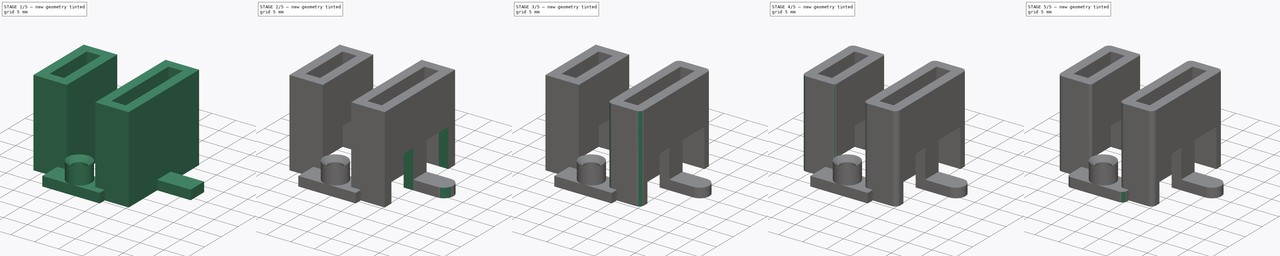
[diagram: build sequence overview — one tinted view per stage of 5, left to right]
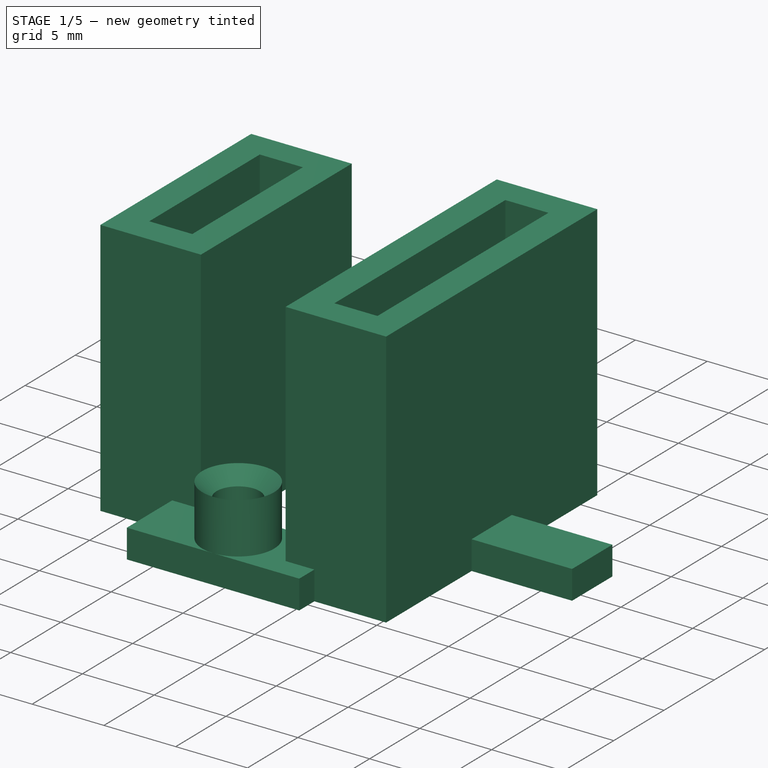
[diagram: stage 1 of 5 — iso view after this stage's code; geometry added in this stage tinted green]
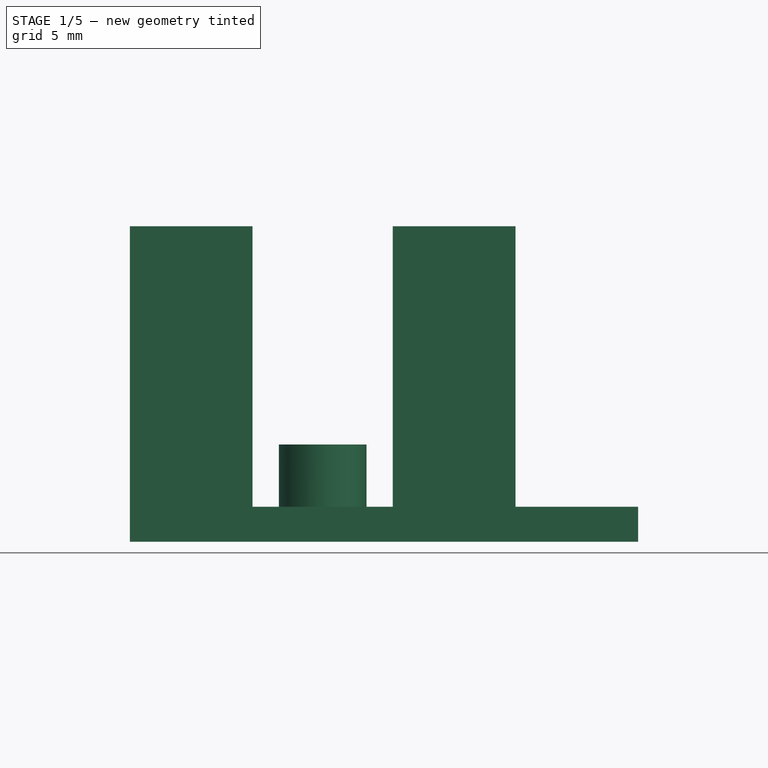
[diagram: stage 1 of 5 — front view after this stage's code; geometry added in this stage tinted green]
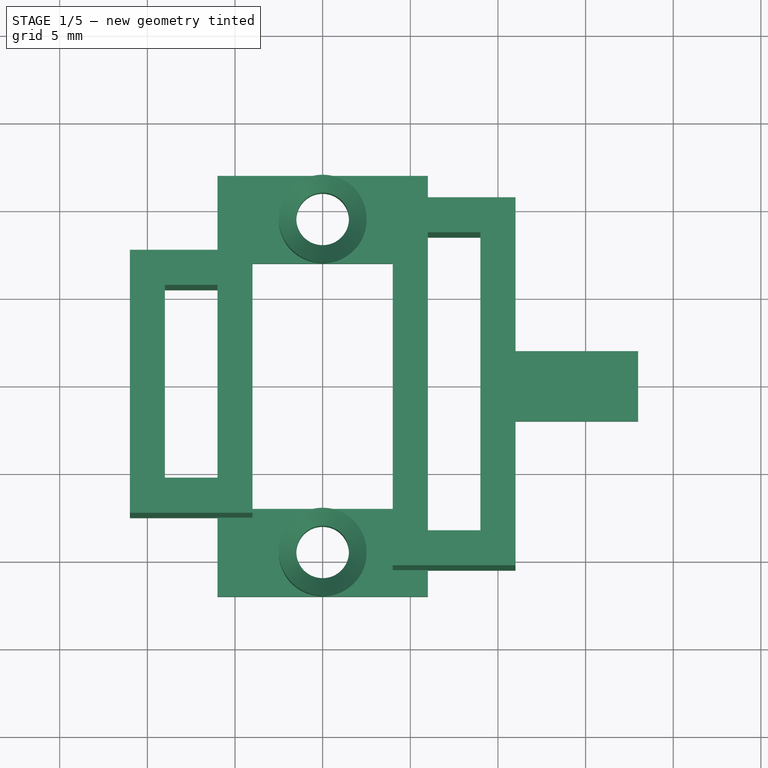
[diagram: stage 1 of 5 — top view after this stage's code; geometry added in this stage tinted green]
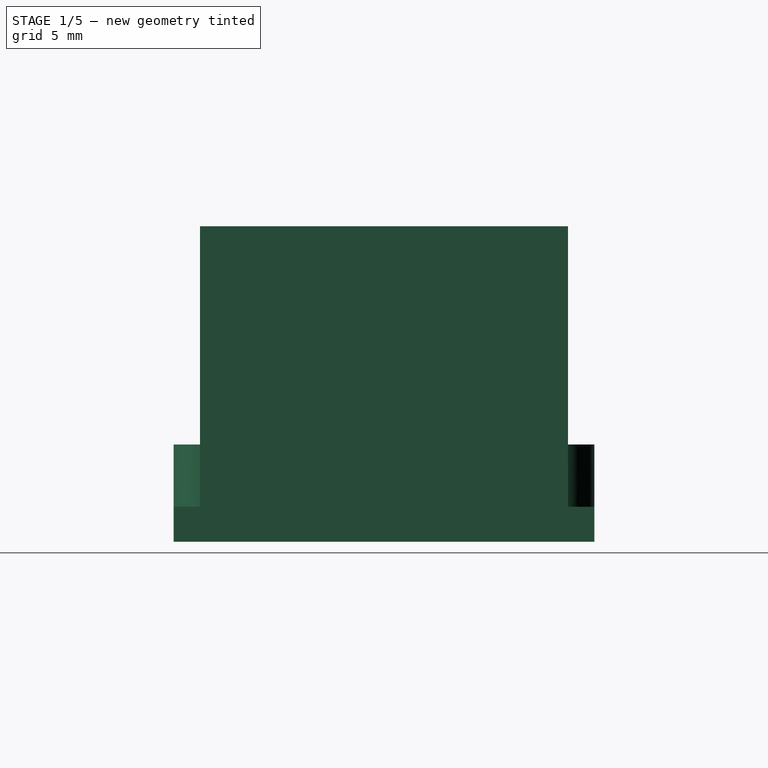
[diagram: stage 1 of 5 — right view after this stage's code; geometry added in this stage tinted green]
FCSTD DOCUMENT  (FreeCAD 0.21R33771 (Git))
Label: Слотове
License: All rights reserved
LicenseURL: https://en.wikipedia.org/wiki/All_rights_reserved
objects: PartDesign::Fillet×14, Sketcher::SketchObject×6, PartDesign::Pad×3, PartDesign::Pocket×2, PartDesign::Hole×1, PartDesign::Body×1
note: 47 computed .brp shape members not serialized (recipe doc carries the construction recipe); baked Part::Feature solids carry a one-line shape summary decoded from their .brp

FEATURE [Sketcher::SketchObject] Sketch001  label="основа - чертеж"
  FullyConstrained = true
  MapMode = 5
  Support = -> [XY_Plane]
  sketch-geometry (28):
    g0: LineSegment StartX=6 StartY=12 StartZ=0 EndX=-6 EndY=12 EndZ=0
    g1: LineSegment StartX=-6 StartY=12 StartZ=0 EndX=-6 EndY=7.5 EndZ=0
    g2: LineSegment StartX=-4 StartY=7 StartZ=0 EndX=4 EndY=7 EndZ=0
    g3: LineSegment StartX=-6 StartY=-12 StartZ=0 EndX=-6 EndY=-7.5 EndZ=0
    g4: LineSegment StartX=-4 StartY=-7 StartZ=0 EndX=4 EndY=-7 EndZ=0
    g5: LineSegment StartX=6 StartY=-10.5 StartZ=0 EndX=6 EndY=-12 EndZ=0
    g6: LineSegment StartX=6 StartY=-12 StartZ=0 EndX=-6 EndY=-12 EndZ=0
    g7: LineSegment StartX=4 StartY=-7 StartZ=0 EndX=4 EndY=7 EndZ=0
    g8: LineSegment StartX=6 StartY=10.5 StartZ=0 EndX=11 EndY=10.5 EndZ=0
    g9: LineSegment StartX=11 StartY=10.5 StartZ=0 EndX=11 EndY=2 EndZ=0
    g10: LineSegment StartX=11 StartY=-10.5 StartZ=0 EndX=6 EndY=-10.5 EndZ=0
    g11: LineSegment StartX=6 StartY=-8.5 StartZ=0 EndX=6 EndY=8.5 EndZ=0
    g12: LineSegment StartX=6 StartY=8.5 StartZ=0 EndX=9 EndY=8.5 EndZ=0
    g13: LineSegment StartX=9 StartY=8.5 StartZ=0 EndX=9 EndY=-8.5 EndZ=0
    g14: LineSegment StartX=9 StartY=-8.5 StartZ=0 EndX=6 EndY=-8.5 EndZ=0
    g15: LineSegment StartX=-6 StartY=-5.5 StartZ=0 EndX=-6 EndY=5.5 EndZ=0
    g16: LineSegment StartX=-6 StartY=5.5 StartZ=0 EndX=-9 EndY=5.5 EndZ=0
    g17: LineSegment StartX=-9 StartY=5.5 StartZ=0 EndX=-9 EndY=-5.5 EndZ=0
    g18: LineSegment StartX=-9 StartY=-5.5 StartZ=0 EndX=-6 EndY=-5.5 EndZ=0
    g19: LineSegment StartX=-4 StartY=-7 StartZ=0 EndX=-4 EndY=7 EndZ=0
    g20: LineSegment StartX=-6 StartY=7.5 StartZ=0 EndX=-11 EndY=7.5 EndZ=0
    g21: LineSegment StartX=-11 StartY=7.5 StartZ=0 EndX=-11 EndY=-7.5 EndZ=0
    g22: LineSegment StartX=-11 StartY=-7.5 StartZ=0 EndX=-6 EndY=-7.5 EndZ=0
    g23: LineSegment StartX=18 StartY=-2 StartZ=0 EndX=18 EndY=2 EndZ=0
    g24: LineSegment StartX=18 StartY=2 StartZ=0 EndX=11 EndY=2 EndZ=0
    g25: LineSegment StartX=11 StartY=-2 StartZ=0 EndX=18 EndY=-2 EndZ=0
    g26: LineSegment StartX=11 StartY=-2 StartZ=0 EndX=11 EndY=-10.5 EndZ=0
    g27: LineSegment StartX=6 StartY=10.5 StartZ=0 EndX=6 EndY=12 EndZ=0
  constraints (82):
    c: Coincident(g27,g0)
    c: Coincident(g0,g1)
    c: Horizontal(g0)
    c: Horizontal(g2)
    c: Vertical(g1)
    c: Coincident(g5,g6)
    c: Coincident(g6,g3)
    c: Horizontal(g4)
    c: Horizontal(g6)
    c: Vertical(g3)
    c: Vertical(g5)
    c: Coincident(g8,g9)
    c: Coincident(g26,g10)
    c: Horizontal(g8)
    c: Horizontal(g10)
    c: Vertical(g7)
    c: Vertical(g9)
    c: Coincident(g11,g12)
    c: Coincident(g12,g13)
    c: Coincident(g13,g14)
    c: Coincident(g14,g11)
    c: Horizontal(g12)
    c: Horizontal(g14)
    c: Vertical(g11)
    c: Vertical(g13)
    c: Coincident(g15,g16)
    c: Coincident(g16,g17)
    c: Coincident(g17,g18)
    c: Coincident(g18,g15)
    c: Horizontal(g16)
    c: Horizontal(g18)
    c: Vertical(g15)
    c: Vertical(g17)
    c: Coincident(g20,g21)
    c: Coincident(g21,g22)
    c: Horizontal(g20)
    c: Horizontal(g22)
    c: Vertical(g19)
    c: Vertical(g21)
    c: Coincident(g23,g24)
    c: Coincident(g25,g23)
    c: Horizontal(g24)
    c: Horizontal(g25)
    c: Vertical(g23)
    c: Coincident(g4,g19)
    c: Coincident(g3,g22)
    c: Coincident(g9,g24)
    c: Coincident(g26,g25)
    c: Coincident(g1,g20)
    c: Coincident(g19,g2)
    c: Coincident(g27,g8)
    c: Coincident(g10,g5)
    c: Coincident(g7,g4)
    c: Coincident(g2,g7)
    c: Vertical(g27)
    c: Vertical(g26)
    c: DistanceX(g12,g12) = 3
    c: DistanceY(g13,g13) = 17
    c: DistanceX(g-1,g11) = 6
    c: DistanceY(g-1,g11) = 8.5
    c: DistanceY(g7,g7) = 14
    c: DistanceX(g2,g2) = 8
    c: DistanceX(g-1,g2) = 4
    c: DistanceY(g-1,g2) = 7
    c: DistanceX(g16,g16) = 3
    c: DistanceY(g15,g15) = 11
    c: DistanceX(g15,g-1) = 6
    c: DistanceY(g-1,g15) = 5.5
    c: DistanceY(g-1,g0) = 12
    c: Symmetric(g0,g3,g-1)
    c: DistanceX(g0,g-1) = 6
    c: DistanceX(g-1,g0) = 6
    c: DistanceY(g12,g8) = 2
    c: DistanceX(g12,g8) = 2
    c: Symmetric(g8,g10,g-1)
    c: DistanceY(g25,g9) = 4
    c: DistanceY(g-1,g23) = 2
    c: DistanceX(g-1,g23) = 18
    c: DistanceX(g-1,g5) = 6
    c: DistanceX(g21,g17) = 2
    c: DistanceY(g21,g-1) = 7.5
    c: DistanceY(g-1,g20) = 7.5
FEATURE [PartDesign::Pad] Pad  label="основа"
  Direction = (0,0,1)
  Length = 2
  Length2 = 10
  Profile = -> Sketch001
  ReferenceAxis = -> Sketch001 [N_Axis]
  Type = 0
FEATURE [Sketcher::SketchObject] Sketch  label="колонки - чертеж"
  FullyConstrained = true
  MapMode = 5
  Placement = pos=(0,0,2) rot=(0,0,1;0rad)
  Support = -> [Pad]
  sketch-geometry (2):
    g0: Circle CenterX=0 CenterY=9.5 CenterZ=0 NormalX=0 NormalY=0 NormalZ=1 AngleXU=0 Radius=2.5
    g1: Circle CenterX=0 CenterY=-9.5 CenterZ=0 NormalX=0 NormalY=0 NormalZ=1 AngleXU=0 Radius=2.5
  constraints (5):
    c: Symmetric(g1,g0,g-1)
    c: DistanceY(g-1,g0) = 9.5
    c: PointOnObject(g0,g-2)
    c: Equal(g1,g0)
    c: Diameter(g1) = 5
FEATURE [PartDesign::Pad] Pad001  label="колонки"
  BaseFeature = -> Pad
  Direction = (0,0,1)
  Length = 4
  Length2 = 10
  Profile = -> Sketch
  ReferenceAxis = -> Sketch [N_Axis]
  Type = 0
FEATURE [Sketcher::SketchObject] Sketch002  label="монтажни отвори - чертеж"
  FullyConstrained = true
  MapMode = 5
  Placement = pos=(0,0,6) rot=(0,0,1;0rad)
  Support = -> [Pad001]
  sketch-geometry (2):
    g0: Circle CenterX=0 CenterY=9.5 CenterZ=0 NormalX=0 NormalY=0 NormalZ=1 AngleXU=0 Radius=1.5
    g1: Circle CenterX=0 CenterY=-9.5 CenterZ=0 NormalX=0 NormalY=0 NormalZ=1 AngleXU=0 Radius=1.5
  constraints (6):
    c: PointOnObject(g0,g-2)
    c: PointOnObject(g1,g-2)
    c: DistanceY(g-1,g0) = 9.5
    c: DistanceY(g1,g-1) = 9.5
    c: Equal(g1,g0)
    c: Diameter(g1) = 3
FEATURE [PartDesign::Hole] Hole
  BaseFeature = -> Pad001
  CustomThreadClearance = 0
  Depth = 25
  DepthType = 0
  Diameter = 3
  DrillForDepth = false
  DrillPoint = 1
  DrillPointAngle = 118
  HoleCutCountersinkAngle = 90
  HoleCutCustomValues = false
  HoleCutDepth = 0
  HoleCutDiameter = 5.9
  HoleCutType = 2
  ModelThread = false
  Profile = -> Sketch002
  Tapered = false
  TaperedAngle = 90
  ThreadClass = 0
  ThreadDepth = 25
  ThreadDepthType = 0
  ThreadDirection = 0
  ThreadFit = 0
  ThreadSize = 0
  ThreadType = 0
  Threaded = false
  UseCustomThreadClearance = false
FEATURE [Sketcher::SketchObject] Sketch003  label="слотове - чертеж"
  FullyConstrained = true
  MapMode = 5
  Placement = pos=(0,0,2) rot=(0,0,1;0rad)
  Support = -> [Hole]
  sketch-geometry (20):
    g0: LineSegment StartX=-6 StartY=-5.5 StartZ=0 EndX=-6 EndY=5.5 EndZ=0
    g1: LineSegment StartX=-6 StartY=5.5 StartZ=0 EndX=-9 EndY=5.5 EndZ=0
    g2: LineSegment StartX=-9 StartY=5.5 StartZ=0 EndX=-9 EndY=-5.5 EndZ=0
    g3: LineSegment StartX=-9 StartY=-5.5 StartZ=0 EndX=-6 EndY=-5.5 EndZ=0
    g4: GeomPoint X=-7.5 Y=0 Z=0
    g5: LineSegment StartX=-4 StartY=-7.5 StartZ=0 EndX=-4 EndY=7.5 EndZ=0
    g6: LineSegment StartX=-4 StartY=7.5 StartZ=0 EndX=-11 EndY=7.5 EndZ=0
    g7: LineSegment StartX=-11 StartY=7.5 StartZ=0 EndX=-11 EndY=-7.5 EndZ=0
    g8: LineSegment StartX=-11 StartY=-7.5 StartZ=0 EndX=-4 EndY=-7.5 EndZ=0
    g9: GeomPoint X=-7.5 Y=0 Z=0
    g10: LineSegment StartX=9 StartY=-8.5 StartZ=0 EndX=9 EndY=8.5 EndZ=0
    g11: LineSegment StartX=9 StartY=8.5 StartZ=0 EndX=6 EndY=8.5 EndZ=0
    g12: LineSegment StartX=6 StartY=8.5 StartZ=0 EndX=6 EndY=-8.5 EndZ=0
    g13: LineSegment StartX=6 StartY=-8.5 StartZ=0 EndX=9 EndY=-8.5 EndZ=0
    g14: GeomPoint X=7.5 Y=0 Z=0
    g15: LineSegment StartX=11 StartY=-10.5 StartZ=0 EndX=11 EndY=10.5 EndZ=0
    g16: LineSegment StartX=11 StartY=10.5 StartZ=0 EndX=4 EndY=10.5 EndZ=0
    g17: LineSegment StartX=4 StartY=10.5 StartZ=0 EndX=4 EndY=-10.5 EndZ=0
    g18: LineSegment StartX=4 StartY=-10.5 StartZ=0 EndX=11 EndY=-10.5 EndZ=0
    g19: GeomPoint X=7.5 Y=0 Z=0
  constraints (50):
    c: Coincident(g0,g1)
    c: Coincident(g1,g2)
    c: Coincident(g2,g3)
    c: Coincident(g3,g0)
    c: Horizontal(g1)
    c: Horizontal(g3)
    c: Vertical(g0)
    c: Vertical(g2)
    c: Symmetric(g1,g0,g4)
    c: PointOnObject(g4,g-1)
    c: Coincident(g5,g6)
    c: Coincident(g6,g7)
    c: Coincident(g7,g8)
    c: Coincident(g8,g5)
    c: Horizontal(g6)
    c: Horizontal(g8)
    c: Vertical(g5)
    c: Vertical(g7)
    c: Symmetric(g6,g5,g9)
    c: Coincident(g9,g4)
    c: Coincident(g10,g11)
    c: Coincident(g11,g12)
    c: Coincident(g12,g13)
    c: Coincident(g13,g10)
    c: Horizontal(g11)
    c: Horizontal(g13)
    c: Vertical(g10)
    c: Vertical(g12)
    c: Symmetric(g11,g10,g14)
    c: PointOnObject(g14,g-1)
    c: Coincident(g15,g16)
    c: Coincident(g16,g17)
    c: Coincident(g17,g18)
    c: Coincident(g18,g15)
    c: Horizontal(g16)
    c: Horizontal(g18)
    c: Vertical(g15)
    c: Vertical(g17)
    c: Symmetric(g16,g15,g19)
    c: Coincident(g19,g14)
    c: DistanceX(g13,g13) = 3
    c: DistanceY(g10,g10) = 17
    c: DistanceX(g-1,g14) = 7.5
    c: DistanceX(g10,g15) = 2
    c: DistanceY(g10,g15) = 2
    c: DistanceY(g0,g0) = 11
    c: DistanceX(g3,g3) = 3
    c: DistanceX(g4,g-1) = 7.5
    c: DistanceX(g7,g2) = 2
    c: DistanceY(g7,g2) = 2
FEATURE [PartDesign::Pad] Pad002  label="слотове"
  BaseFeature = -> Hole
  Direction = (0,0,1)
  Length = 16
  Length2 = 10
  Profile = -> Sketch003
  ReferenceAxis = -> Sketch003 [N_Axis]
  Type = 0
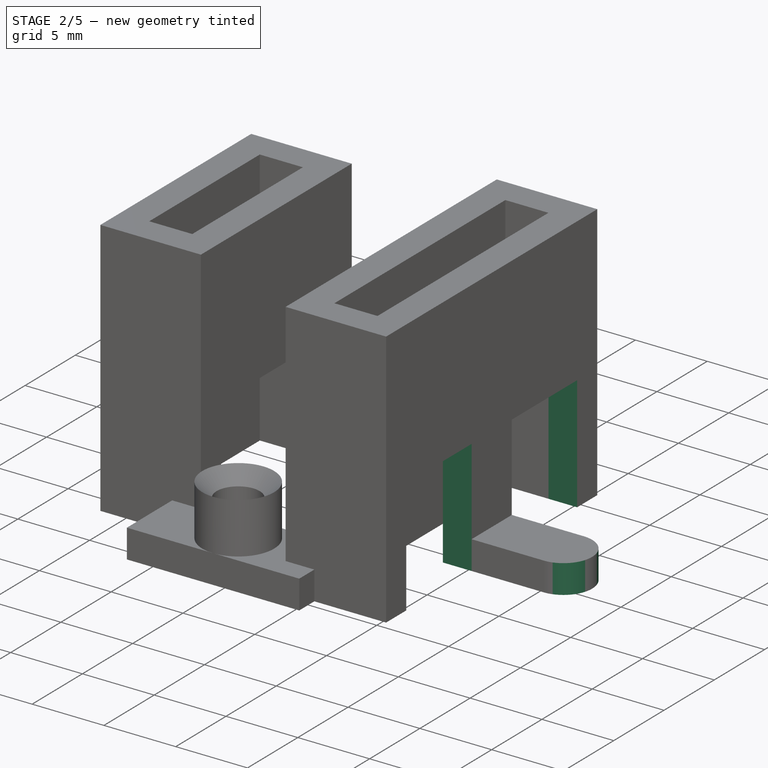
[diagram: stage 2 of 5 — iso view after this stage's code; geometry added in this stage tinted green]
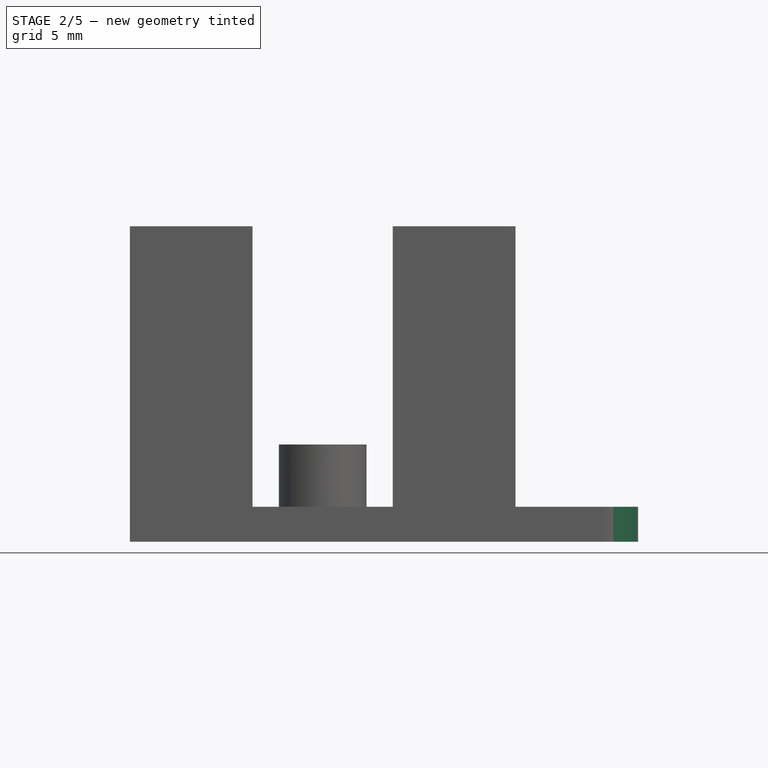
[diagram: stage 2 of 5 — front view after this stage's code; geometry added in this stage tinted green]
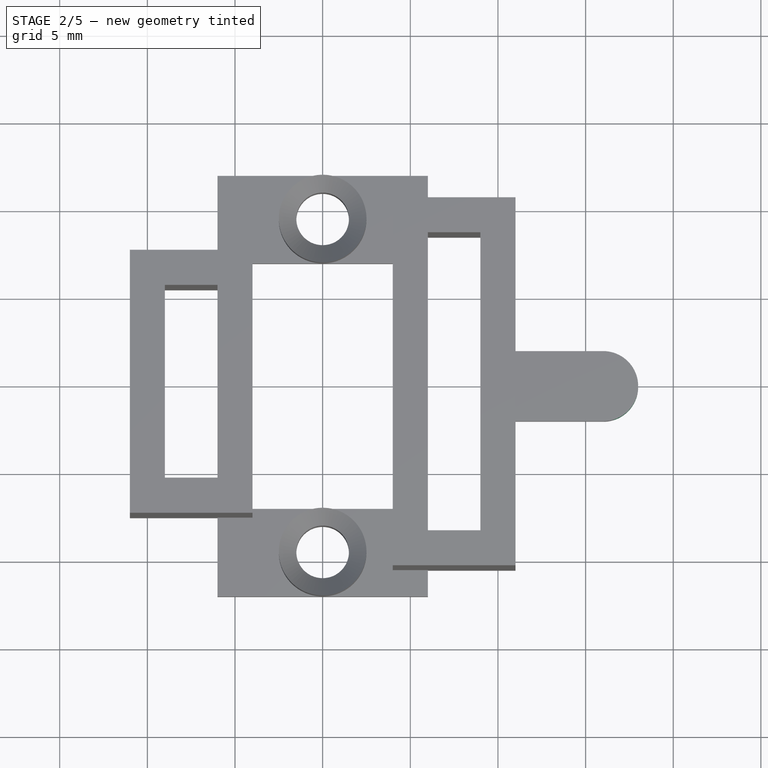
[diagram: stage 2 of 5 — top view after this stage's code; geometry added in this stage tinted green]
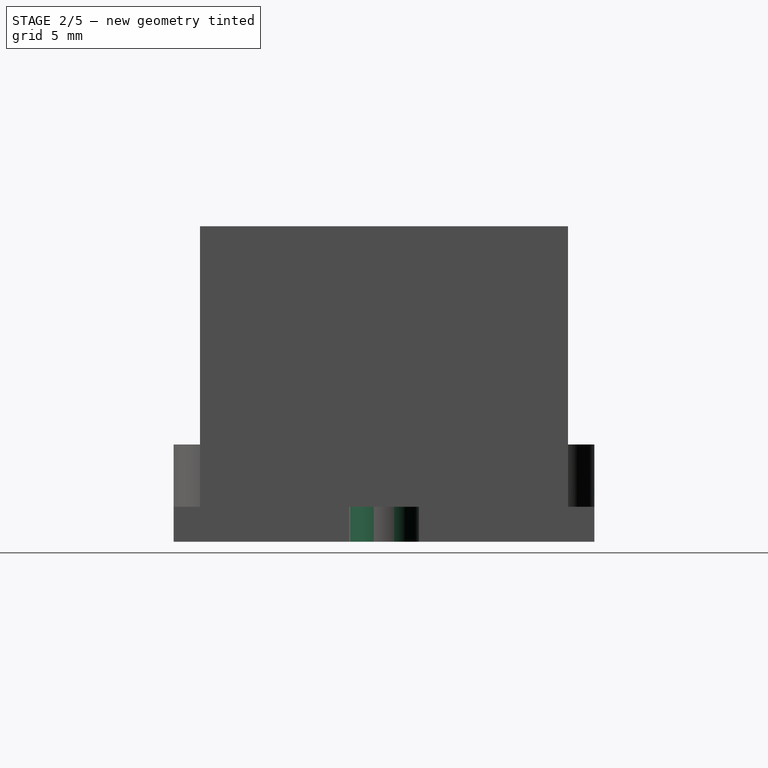
[diagram: stage 2 of 5 — right view after this stage's code; geometry added in this stage tinted green]
FEATURE [Sketcher::SketchObject] Sketch004  label="кабелни  отвори задни - чертеж"
  FullyConstrained = true
  MapMode = 5
  Placement = pos=(11,0,0) rot=(0.57735,0.57735,0.57735;2.0944rad)
  Support = -> [Pad002]
  sketch-geometry (8):
    g0: LineSegment StartX=-2 StartY=0 StartZ=0 EndX=-8.5 EndY=0 EndZ=0
    g1: LineSegment StartX=-8.5 StartY=0 StartZ=0 EndX=-8.5 EndY=8 EndZ=0
    g2: LineSegment StartX=-8.5 StartY=8 StartZ=0 EndX=-2 EndY=8 EndZ=0
    g3: LineSegment StartX=-2 StartY=8 StartZ=0 EndX=-2 EndY=0 EndZ=0
    g4: LineSegment StartX=2 StartY=0 StartZ=0 EndX=8.5 EndY=0 EndZ=0
    g5: LineSegment StartX=8.5 StartY=0 StartZ=0 EndX=8.5 EndY=8 EndZ=0
    g6: LineSegment StartX=8.5 StartY=8 StartZ=0 EndX=2 EndY=8 EndZ=0
    g7: LineSegment StartX=2 StartY=8 StartZ=0 EndX=2 EndY=0 EndZ=0
  constraints (24):
    c: Coincident(g0,g1)
    c: Coincident(g1,g2)
    c: Coincident(g2,g3)
    c: Coincident(g3,g0)
    c: Horizontal(g0)
    c: Horizontal(g2)
    c: Vertical(g1)
    c: Vertical(g3)
    c: PointOnObject(g0,g-1)
    c: Coincident(g4,g5)
    c: Coincident(g5,g6)
    c: Coincident(g6,g7)
    c: Coincident(g7,g4)
    c: Horizontal(g4)
    c: Horizontal(g6)
    c: Vertical(g5)
    c: Vertical(g7)
    c: PointOnObject(g4,g-1)
    c: DistanceX(g2,g2) = 6.5
    c: DistanceX(g2,g-1) = 2
    c: DistanceX(g-1,g6) = 2
    c: DistanceX(g6,g6) = 6.5
    c: DistanceY(g1,g1) = 8
    c: DistanceY(g7,g7) = 8
FEATURE [PartDesign::Pocket] Pocket  label="кабелни  отвори задни"
  BaseFeature = -> Pad002
  Direction = (-1,0,0)
  Length = 2
  Length2 = 5
  Profile = -> Sketch004
  ReferenceAxis = -> Sketch004 [N_Axis]
  Type = 0
FEATURE [Sketcher::SketchObject] Sketch005  label="кабелен  отвор преден - чертеж"
  FullyConstrained = true
  MapMode = 5
  Placement = pos=(-4,0,0) rot=(0.57735,0.57735,0.57735;2.0944rad)
  Support = -> [Pocket]
  sketch-geometry (5):
    g0: LineSegment StartX=-5.5 StartY=8 StartZ=0 EndX=-5.5 EndY=0 EndZ=0
    g1: LineSegment StartX=-5.5 StartY=0 StartZ=0 EndX=5.5 EndY=0 EndZ=0
    g2: LineSegment StartX=5.5 StartY=0 StartZ=0 EndX=5.5 EndY=8 EndZ=0
    g3: LineSegment StartX=5.5 StartY=8 StartZ=0 EndX=-5.5 EndY=8 EndZ=0
    g4: GeomPoint X=-2e-16 Y=4 Z=0
  constraints (13):
    c: Coincident(g0,g1)
    c: Coincident(g1,g2)
    c: Coincident(g2,g3)
    c: Coincident(g3,g0)
    c: Horizontal(g1)
    c: Horizontal(g3)
    c: Vertical(g0)
    c: Vertical(g2)
    c: Symmetric(g1,g0,g4)
    c: PointOnObject(g4,g-2)
    c: DistanceX(g3,g3) = 11
    c: DistanceY(g2,g2) = 8
    c: DistanceY(g-1,g2) = 8
FEATURE [PartDesign::Pocket] Pocket001  label="кабелен  отвор преден"
  BaseFeature = -> Pocket
  Direction = (-1,0,0)
  Length = 2
  Length2 = 5
  Profile = -> Sketch005
  ReferenceAxis = -> Sketch005 [N_Axis]
  Type = 0
FEATURE [PartDesign::Fillet] Fillet
  Base = -> Pocket001 [Edge183]
  BaseFeature = -> Pocket001
  Radius = 2
  SupportTransform = false
  UseAllEdges = false
FEATURE [PartDesign::Fillet] Fillet001
  Base = -> Fillet [Edge23]
  BaseFeature = -> Fillet
  Radius = 1.99
  SupportTransform = false
  UseAllEdges = false
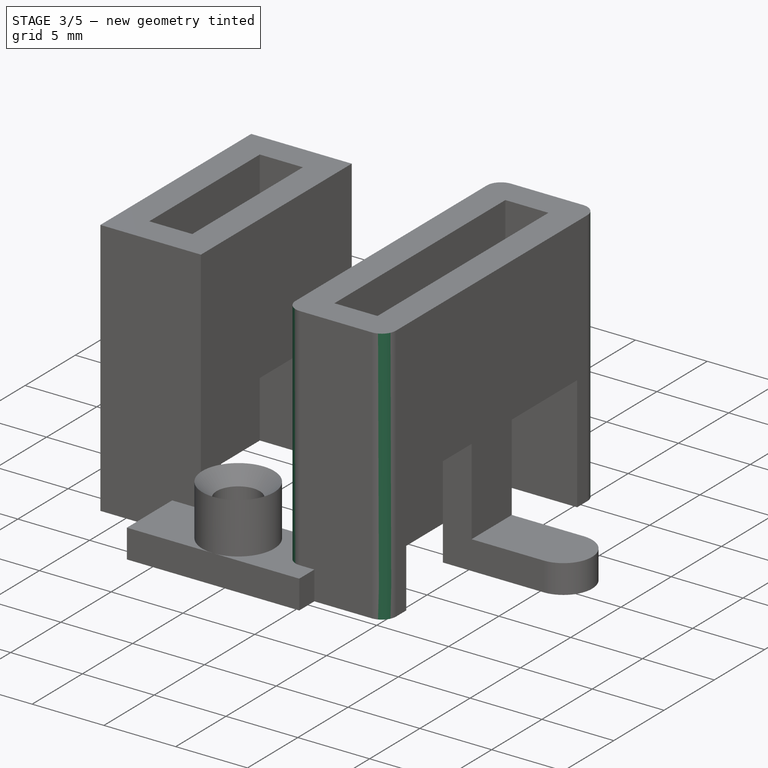
[diagram: stage 3 of 5 — iso view after this stage's code; geometry added in this stage tinted green]
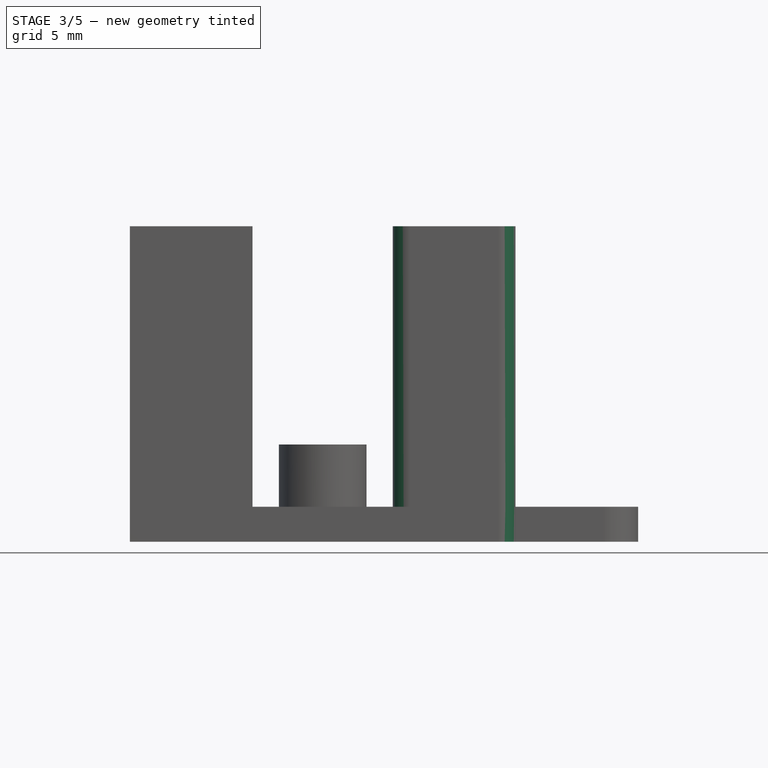
[diagram: stage 3 of 5 — front view after this stage's code; geometry added in this stage tinted green]
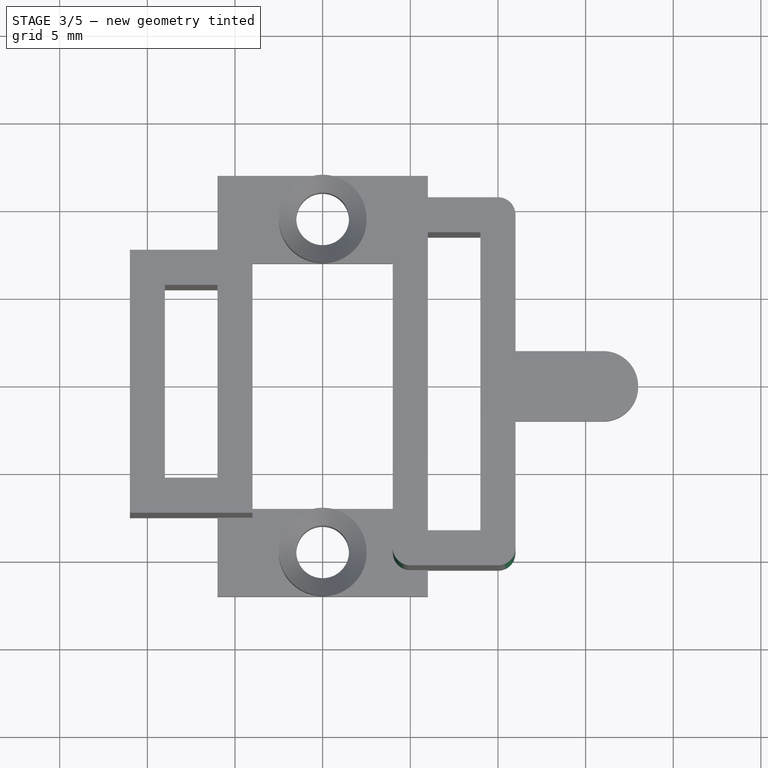
[diagram: stage 3 of 5 — top view after this stage's code; geometry added in this stage tinted green]
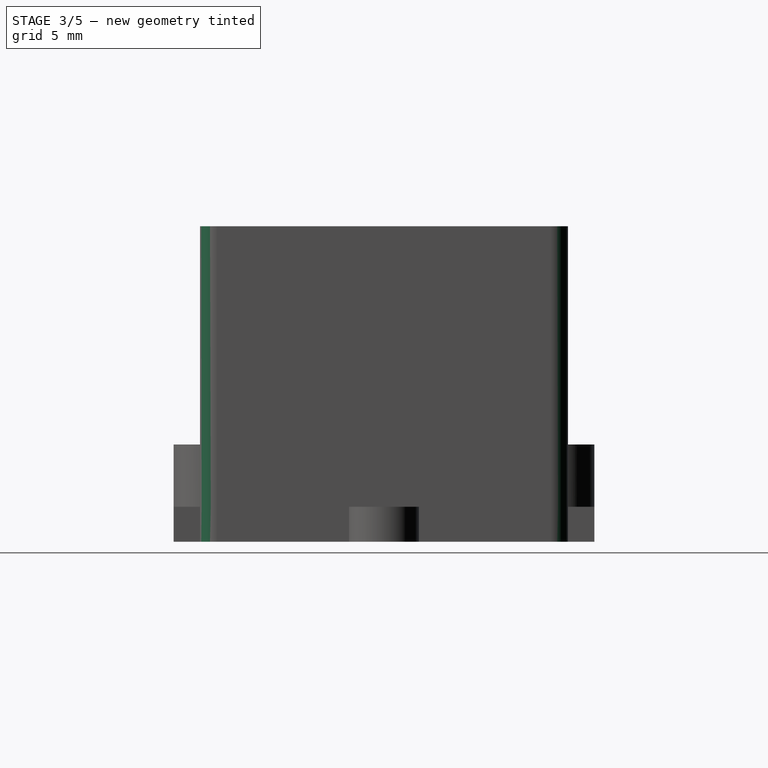
[diagram: stage 3 of 5 — right view after this stage's code; geometry added in this stage tinted green]
FEATURE [PartDesign::Fillet] Fillet002
  Base = -> Fillet001 [Edge26]
  BaseFeature = -> Fillet001
  Radius = 1
  SupportTransform = false
  UseAllEdges = false
FEATURE [PartDesign::Fillet] Fillet003
  Base = -> Fillet002 [Edge6]
  BaseFeature = -> Fillet002
  Radius = 1
  SupportTransform = false
  UseAllEdges = false
FEATURE [PartDesign::Fillet] Fillet004
  Base = -> Fillet003 [Edge59]
  BaseFeature = -> Fillet003
  Radius = 1
  SupportTransform = false
  UseAllEdges = false
FEATURE [PartDesign::Fillet] Fillet005
  Base = -> Fillet004 [Edge23]
  BaseFeature = -> Fillet004
  Radius = 1
  SupportTransform = false
  UseAllEdges = false
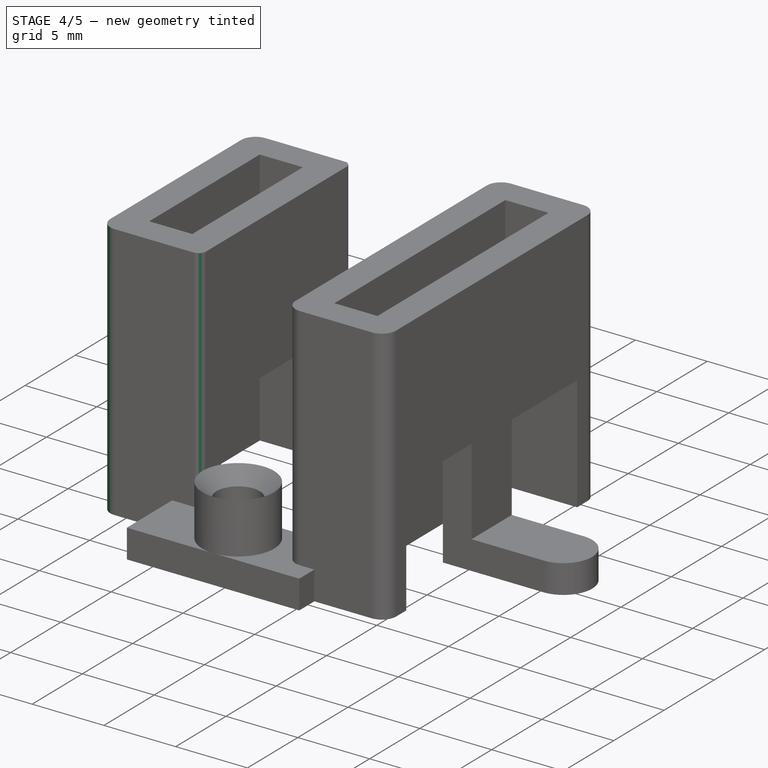
[diagram: stage 4 of 5 — iso view after this stage's code; geometry added in this stage tinted green]
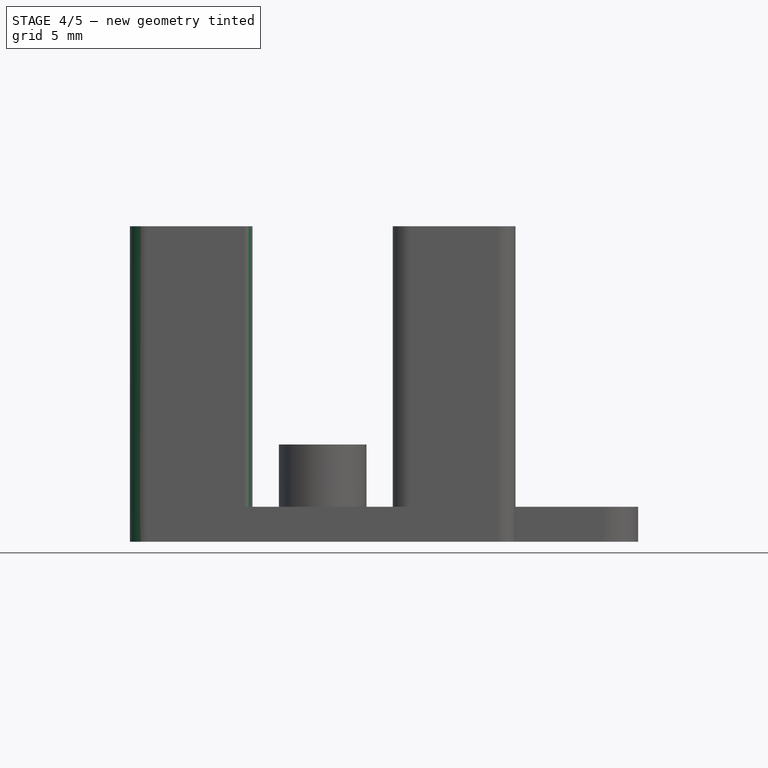
[diagram: stage 4 of 5 — front view after this stage's code; geometry added in this stage tinted green]
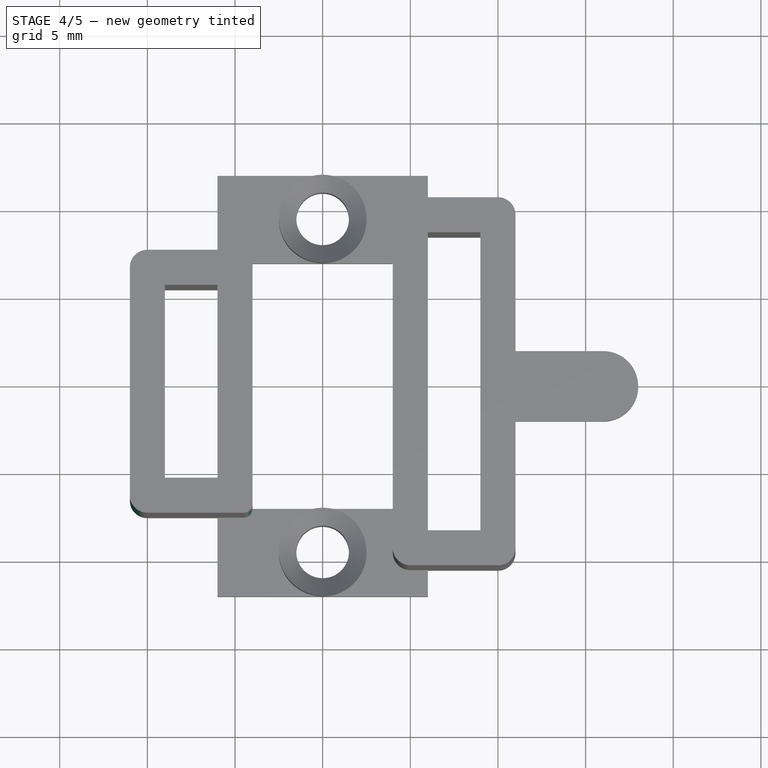
[diagram: stage 4 of 5 — top view after this stage's code; geometry added in this stage tinted green]
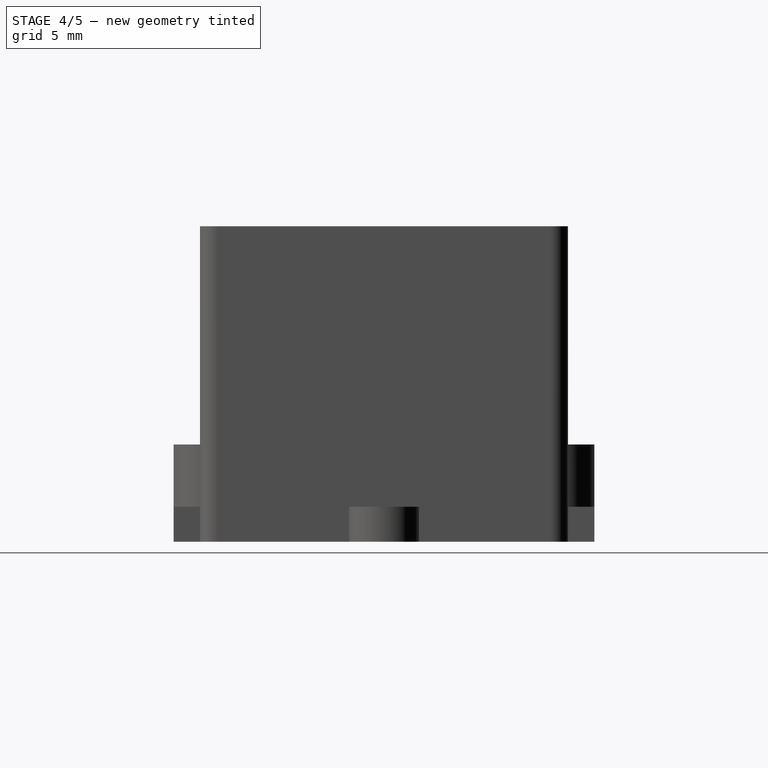
[diagram: stage 4 of 5 — right view after this stage's code; geometry added in this stage tinted green]
FEATURE [PartDesign::Fillet] Fillet006
  Base = -> Fillet005 [Edge192]
  BaseFeature = -> Fillet005
  Radius = 1
  SupportTransform = false
  UseAllEdges = false
FEATURE [PartDesign::Fillet] Fillet007
  Base = -> Fillet006 [Edge113]
  BaseFeature = -> Fillet006
  Radius = 1
  SupportTransform = false
  UseAllEdges = false
FEATURE [PartDesign::Fillet] Fillet008
  Base = -> Fillet007 [Edge127]
  BaseFeature = -> Fillet007
  Radius = 0.5
  SupportTransform = false
  UseAllEdges = false
FEATURE [PartDesign::Fillet] Fillet009
  Base = -> Fillet008 [Edge40]
  BaseFeature = -> Fillet008
  Radius = 0.5
  SupportTransform = false
  UseAllEdges = false
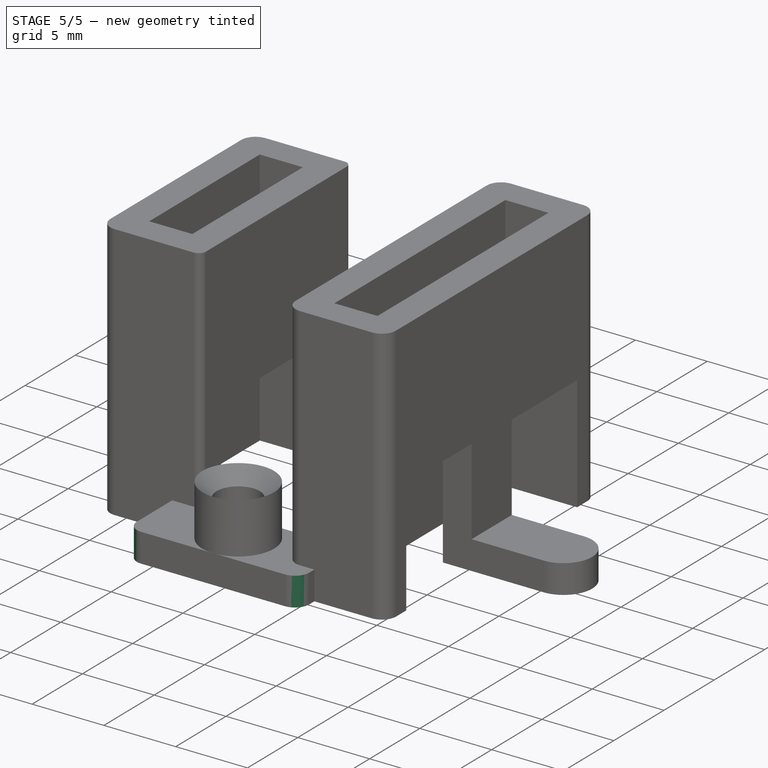
[diagram: stage 5 of 5 — iso view after this stage's code; geometry added in this stage tinted green]
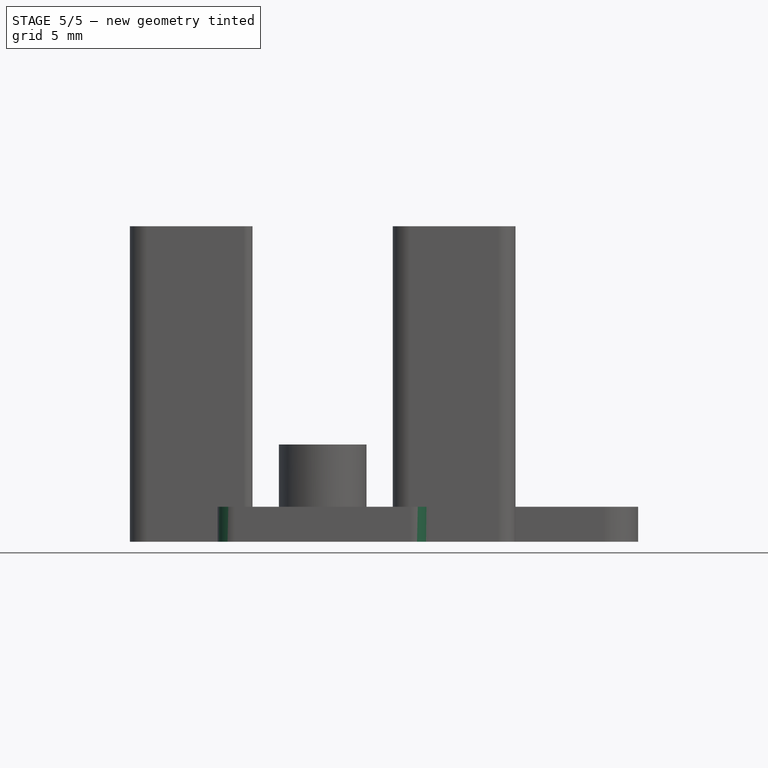
[diagram: stage 5 of 5 — front view after this stage's code; geometry added in this stage tinted green]
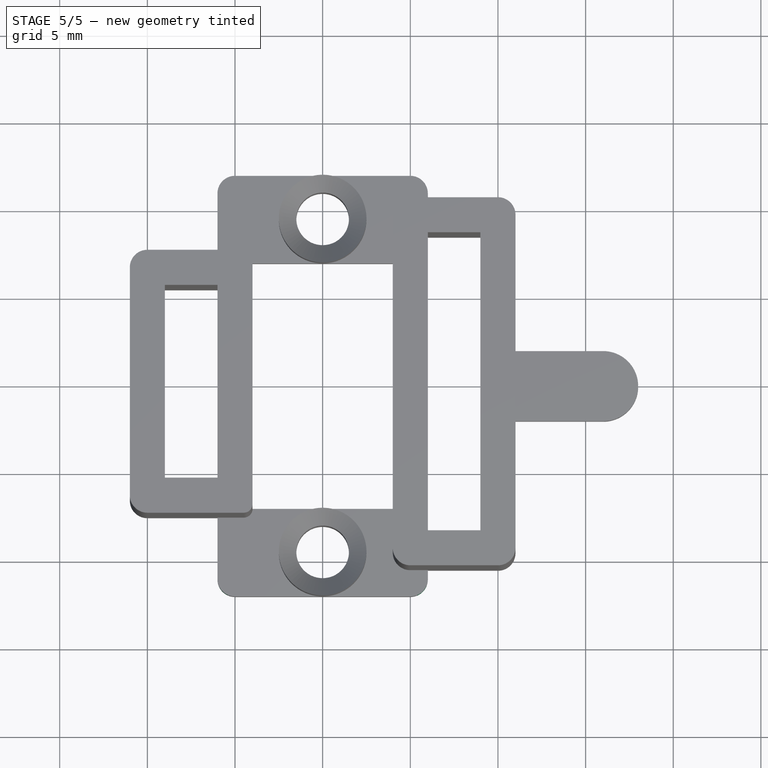
[diagram: stage 5 of 5 — top view after this stage's code; geometry added in this stage tinted green]
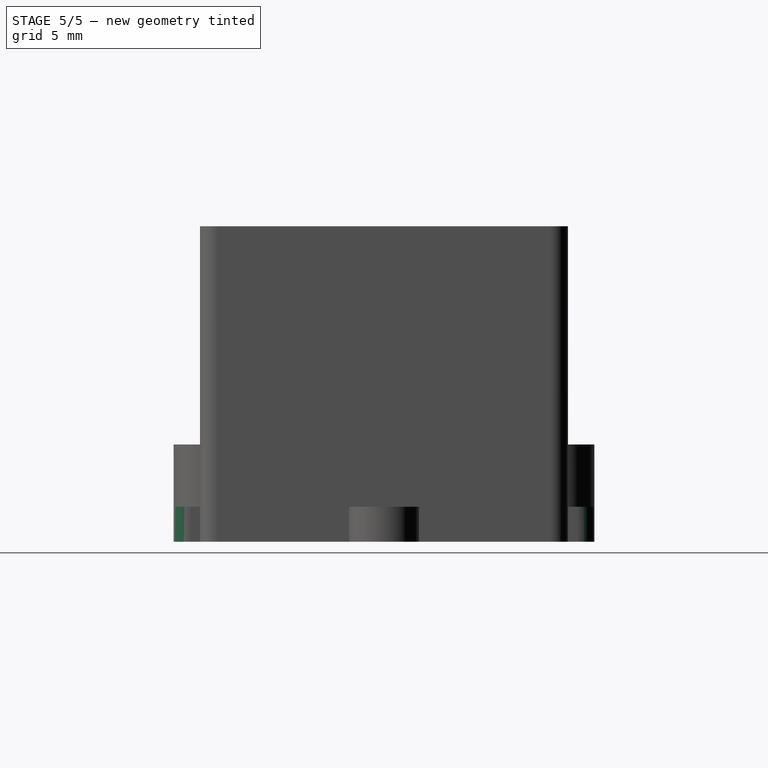
[diagram: stage 5 of 5 — right view after this stage's code; geometry added in this stage tinted green]
FEATURE [PartDesign::Fillet] Fillet010
  Base = -> Fillet009 [Edge107]
  BaseFeature = -> Fillet009
  Radius = 1
  SupportTransform = false
  UseAllEdges = false
FEATURE [PartDesign::Fillet] Fillet011
  Base = -> Fillet010 [Edge18]
  BaseFeature = -> Fillet010
  Radius = 1
  SupportTransform = false
  UseAllEdges = false
FEATURE [PartDesign::Fillet] Fillet012
  Base = -> Fillet011 [Edge83]
  BaseFeature = -> Fillet011
  Radius = 1
  SupportTransform = false
  UseAllEdges = false
FEATURE [PartDesign::Fillet] Fillet013
  Base = -> Fillet012 [Edge45]
  BaseFeature = -> Fillet012
  Radius = 1
  SupportTransform = false
  UseAllEdges = false
FEATURE [PartDesign::Body] Body
  Group = -> [Sketch,Sketch001,Pad,Pad001,Sketch002,Hole,Sketch003,Pad002,Sketch004,Pocket,Sketch005,Pocket001,Fillet,Fillet001,Fillet002,Fillet003,Fillet004,Fillet005,Fillet006,Fillet007,Fillet008,Fillet009,Fillet010,Fillet011,Fillet012,Fillet013]
  Origin = -> Origin
  Tip = -> Fillet013
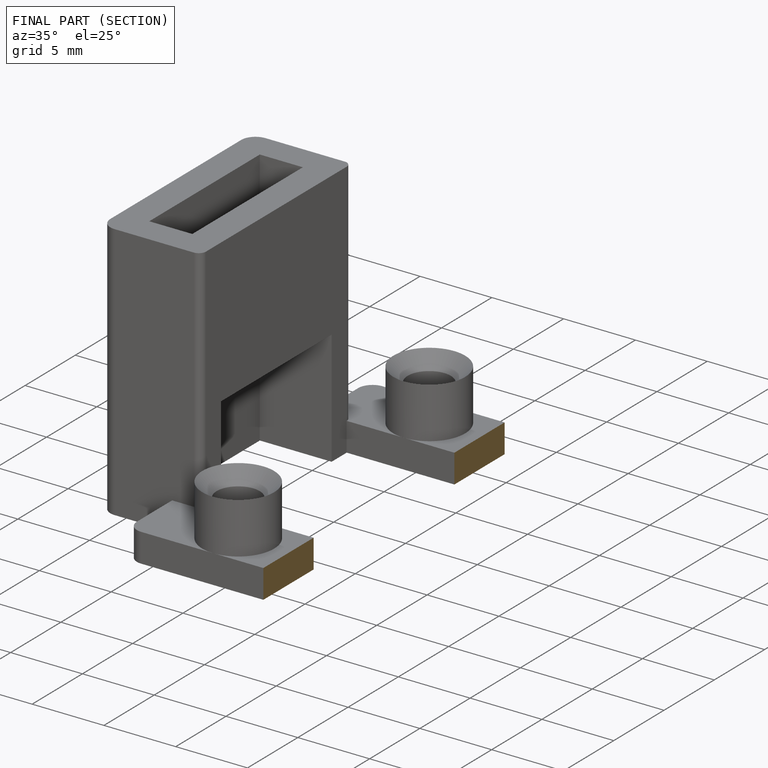
[diagram: finished part — half-section view (interior)]
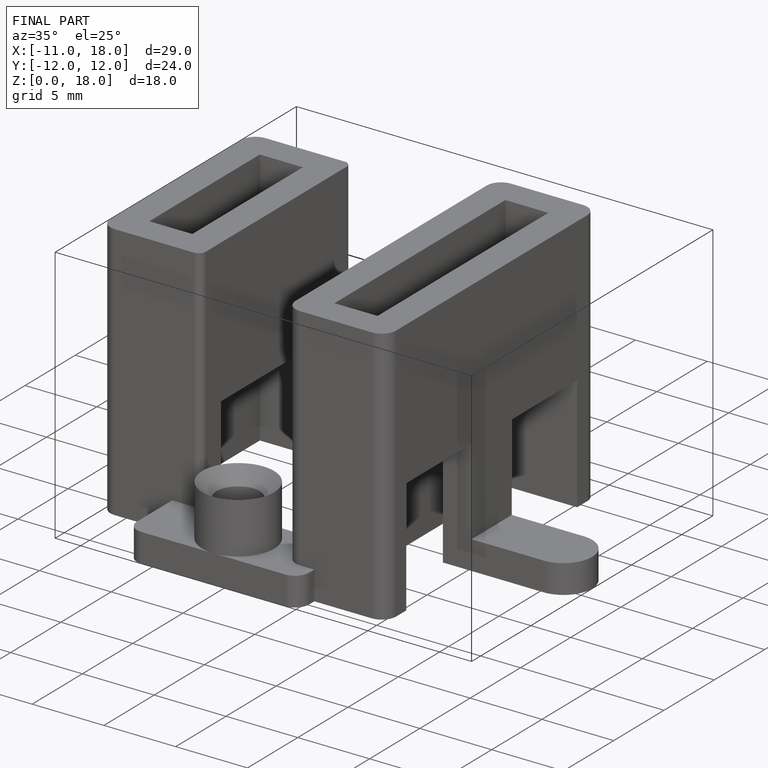
[diagram: finished part — iso view with bounding-box wireframe]
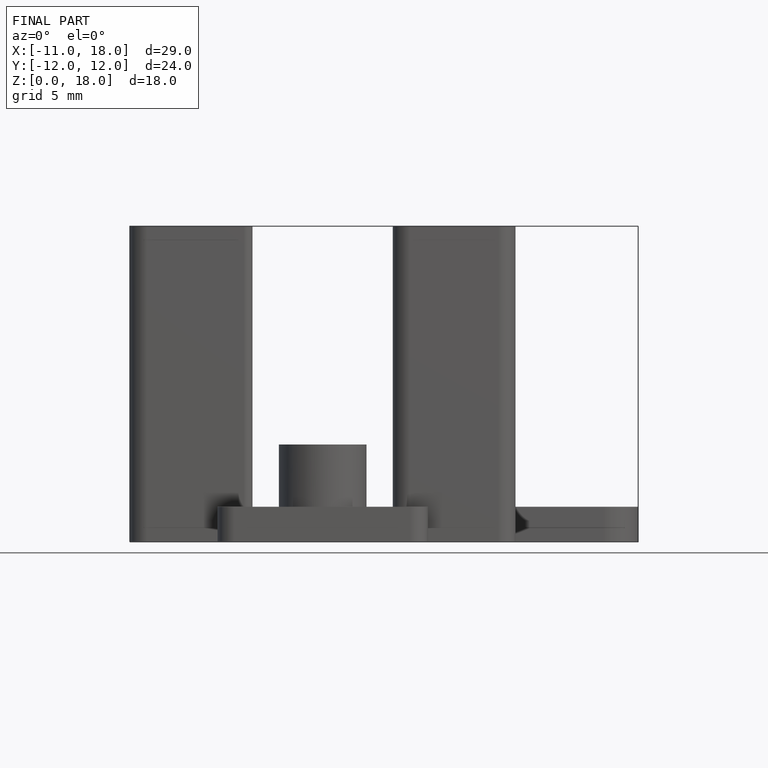
[diagram: finished part — front view with bounding-box wireframe]
